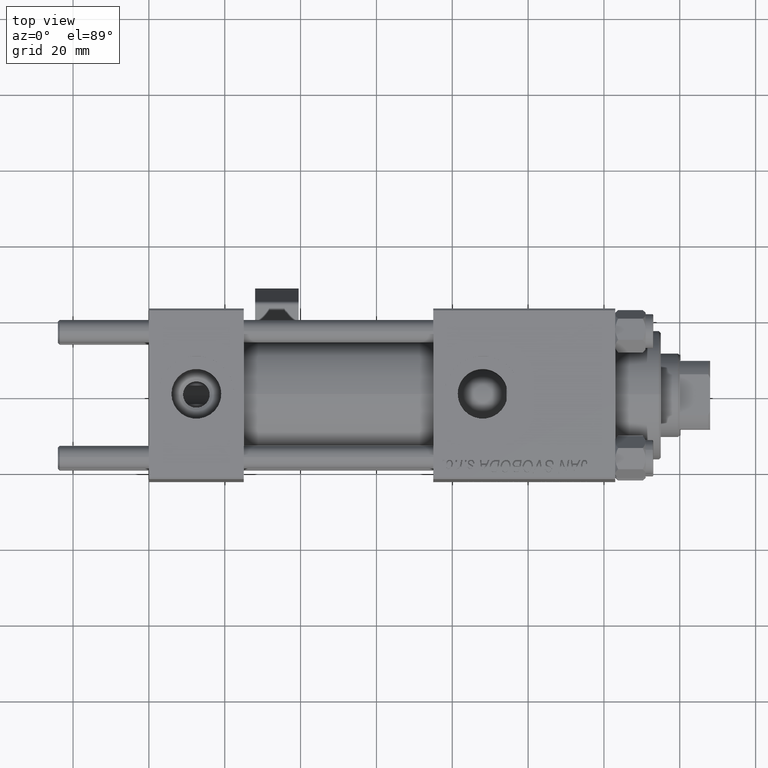
[diagram: clean part render]
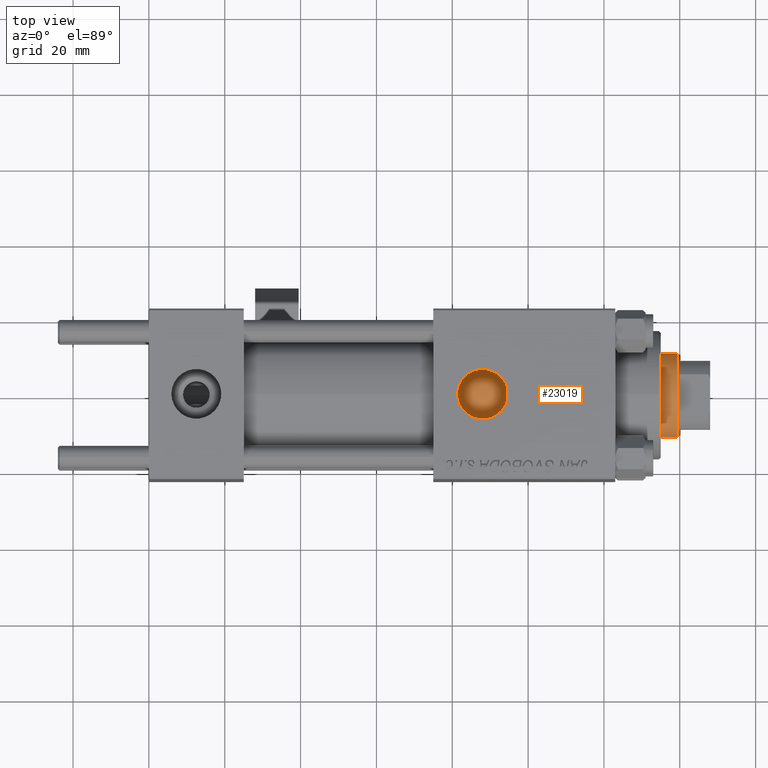
[diagram: same view with one face highlighted and labeled with its STEP entity id]
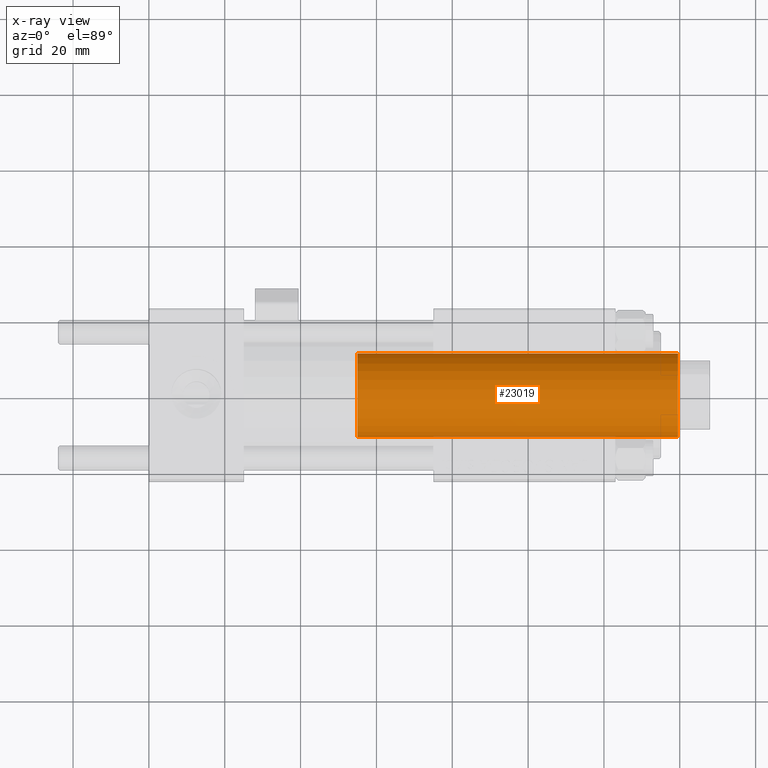
[diagram: x-ray of the same camera — body ghosted, the highlighted face saturated]
A machine part, top view. The second image highlights one B-rep face of the part: STEP entity #23019.
The next image is the same camera in x-ray: the body ghosted, the highlighted face saturated — about 1% of this face is hidden behind the body in this view.
In plain terms, the highlighted cylindrical surface (partial cylindrical patch) has radius 11 mm, axis along (-1, 0, 0).
Its self-contained STEP definition (entity closure, byte-faithful):
#352 = CYLINDRICAL_SURFACE ( 'NONE', #48983, 11.00000000000000000 ) ;
#1359 = ORIENTED_EDGE ( 'NONE', *, *, #12600, .T. ) ;
#2246 = ORIENTED_EDGE ( 'NONE', *, *, #16889, .T. ) ;
#2828 = CARTESIAN_POINT ( 'NONE',  ( 0.000000000000000000, 0.000000000000000000, 114.5000000000000142 ) ) ;
#7686 = CARTESIAN_POINT ( 'NONE',  ( -11.00000000000000000, 0.000000000000000000, 30.00000000000000000 ) ) ;
#11463 = AXIS2_PLACEMENT_3D ( 'NONE', #2828, #51207, #50945 ) ;
#12284 = CARTESIAN_POINT ( 'NONE',  ( 11.00000000000000000, 1.347111479062088405E-15, 115.0000000000000000 ) ) ;
#12600 = EDGE_CURVE ( 'NONE', #22258, #14845, #42657, .T. ) ;
#12685 = AXIS2_PLACEMENT_3D ( 'NONE', #24345, #27521, #20362 ) ;
#14845 = VERTEX_POINT ( 'NONE', #25314 ) ;
#16455 = CARTESIAN_POINT ( 'NONE',  ( 0.000000000000000000, 0.000000000000000000, 115.0000000000000000 ) ) ;
#16889 = EDGE_CURVE ( 'NONE', #14845, #32627, #37155, .T. ) ;
#17536 = ORIENTED_EDGE ( 'NONE', *, *, #41600, .F. ) ;
#20362 = DIRECTION ( 'NONE',  ( 1.000000000000000000, 0.000000000000000000, 0.000000000000000000 ) ) ;
#20388 = VERTEX_POINT ( 'NONE', #26482 ) ;
#22258 = VERTEX_POINT ( 'NONE', #37056 ) ;
#23019 = ADVANCED_FACE ( 'NONE', ( #36015 ), #352, .T. ) ;
#23688 = EDGE_LOOP ( 'NONE', ( #17536, #1359, #2246, #32322 ) ) ;
#24345 = CARTESIAN_POINT ( 'NONE',  ( 0.000000000000000000, 0.000000000000000000, 30.00000000000000000 ) ) ;
#24394 = DIRECTION ( 'NONE',  ( -0.000000000000000000, -0.000000000000000000, -1.000000000000000000 ) ) ;
#25002 = CARTESIAN_POINT ( 'NONE',  ( -11.00000000000000000, 0.000000000000000000, 115.0000000000000000 ) ) ;
#25314 = CARTESIAN_POINT ( 'NONE',  ( -11.00000000000000000, 0.000000000000000000, 114.5000000000000142 ) ) ;
#25931 = VECTOR ( 'NONE', #37662, 1000.000000000000000 ) ;
#26482 = CARTESIAN_POINT ( 'NONE',  ( 11.00000000000000000, 1.347111479062088405E-15, 30.00000000000000000 ) ) ;
#27521 = DIRECTION ( 'NONE',  ( 0.000000000000000000, 0.000000000000000000, 1.000000000000000000 ) ) ;
#28669 = DIRECTION ( 'NONE',  ( -0.000000000000000000, -0.000000000000000000, -1.000000000000000000 ) ) ;
#29568 = CIRCLE ( 'NONE', #12685, 11.00000000000000000 ) ;
#32055 = DIRECTION ( 'NONE',  ( -1.000000000000000000, 0.000000000000000000, 0.000000000000000000 ) ) ;
#32322 = ORIENTED_EDGE ( 'NONE', *, *, #50970, .T. ) ;
#32627 = VERTEX_POINT ( 'NONE', #7686 ) ;
#36015 = FACE_OUTER_BOUND ( 'NONE', #23688, .T. ) ;
#37056 = CARTESIAN_POINT ( 'NONE',  ( 11.00000000000000000, 1.347111479062088405E-15, 114.5000000000000142 ) ) ;
#37155 = LINE ( 'NONE', #25002, #25931 ) ;
#37662 = DIRECTION ( 'NONE',  ( -0.000000000000000000, -0.000000000000000000, -1.000000000000000000 ) ) ;
#37757 = VECTOR ( 'NONE', #28669, 1000.000000000000000 ) ;
#41600 = EDGE_CURVE ( 'NONE', #22258, #20388, #47987, .T. ) ;
#42657 = CIRCLE ( 'NONE', #11463, 11.00000000000000000 ) ;
#47987 = LINE ( 'NONE', #12284, #37757 ) ;
#48983 = AXIS2_PLACEMENT_3D ( 'NONE', #16455, #24394, #32055 ) ;
#50945 = DIRECTION ( 'NONE',  ( 1.000000000000000000, 0.000000000000000000, 0.000000000000000000 ) ) ;
#50970 = EDGE_CURVE ( 'NONE', #32627, #20388, #29568, .T. ) ;
#51207 = DIRECTION ( 'NONE',  ( 0.000000000000000000, 0.000000000000000000, -1.000000000000000000 ) ) ;